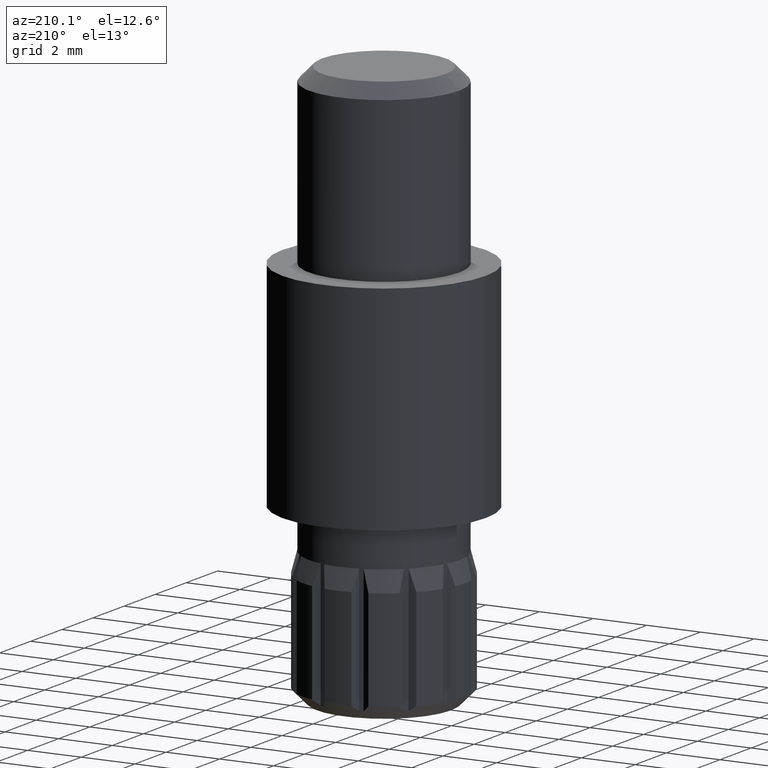
[diagram: clean part render]
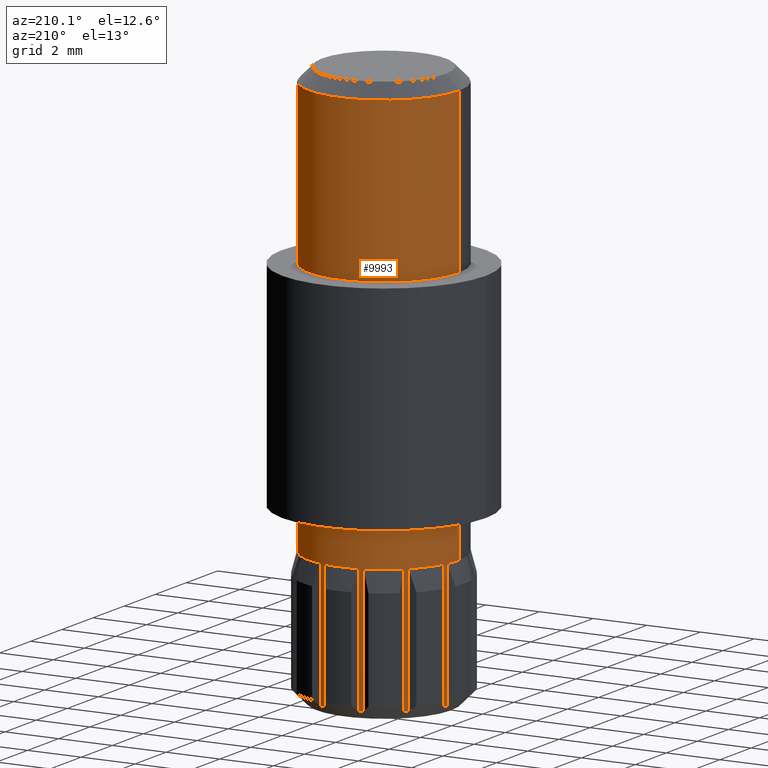
[diagram: same view with one face highlighted and labeled with its STEP entity id]
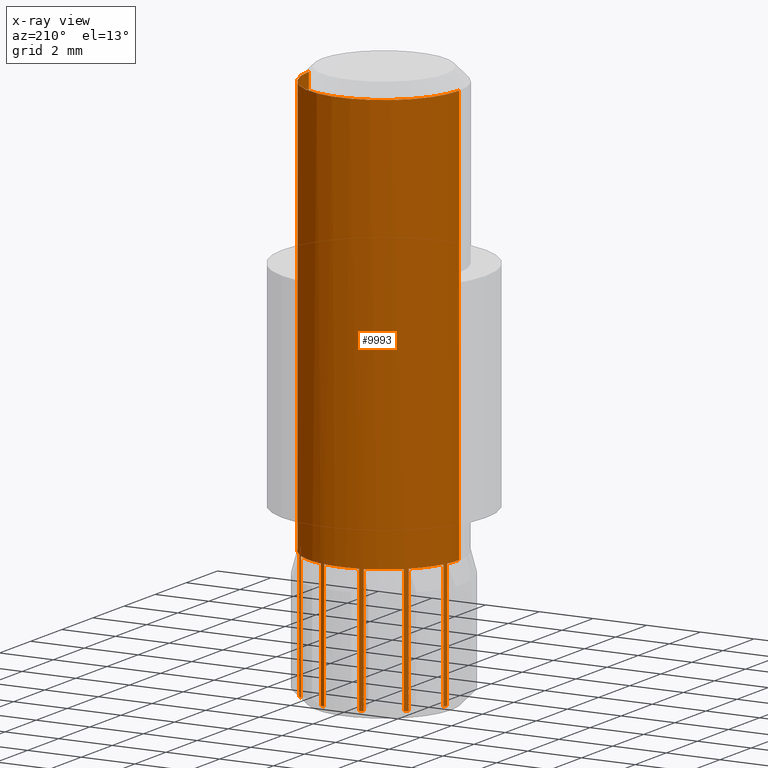
[diagram: x-ray of the same camera — body ghosted, the highlighted face saturated]
A machine part, auxiliary view. The second image highlights one B-rep face of the part: STEP entity #9993.
The next image is the same camera in x-ray: the body ghosted, the highlighted face saturated — about 0% of this face is hidden behind the body in this view.
In plain terms, the highlighted cylindrical surface (partial cylindrical patch) has radius 2.8 mm, axis along (-0, -0, -1).
Its self-contained STEP definition (entity closure, byte-faithful):
#5 = VERTEX_POINT ( 'NONE', #11321 ) ;
#7 = AXIS2_PLACEMENT_3D ( 'NONE', #841, #7958, #1878 ) ;
#28 = VERTEX_POINT ( 'NONE', #7127 ) ;
#102 = ORIENTED_EDGE ( 'NONE', *, *, #1178, .F. ) ;
#148 = VECTOR ( 'NONE', #10049, 1000.000000000000000 ) ;
#175 = VERTEX_POINT ( 'NONE', #6104 ) ;
#238 = CIRCLE ( 'NONE', #5033, 2.800000000000000300 ) ;
#292 = VECTOR ( 'NONE', #6631, 1000.000000000000000 ) ;
#320 = ORIENTED_EDGE ( 'NONE', *, *, #6941, .T. ) ;
#339 = VERTEX_POINT ( 'NONE', #10831 ) ;
#362 = ORIENTED_EDGE ( 'NONE', *, *, #8597, .T. ) ;
#525 = VECTOR ( 'NONE', #12853, 1000.000000000000000 ) ;
#628 = ORIENTED_EDGE ( 'NONE', *, *, #2498, .T. ) ;
#756 = EDGE_CURVE ( 'NONE', #5242, #5095, #8400, .T. ) ;
#760 = CARTESIAN_POINT ( 'NONE',  ( -2.723508766279258100, 0.6500000000000286700, 5.000000000000000000 ) ) ;
#841 = CARTESIAN_POINT ( 'NONE',  ( 0.0000000000000000000, 0.0000000000000000000, 0.2999999999999996000 ) ) ;
#873 = VECTOR ( 'NONE', #4812, 1000.000000000000000 ) ;
#1013 = CARTESIAN_POINT ( 'NONE',  ( 2.723508766279266500, 0.6499999999999904700, 5.000000000000000000 ) ) ;
#1031 = CARTESIAN_POINT ( 'NONE',  ( -0.6500000000000000200, 2.723508766279264300, 5.000000000000000900 ) ) ;
#1178 = EDGE_CURVE ( 'NONE', #175, #9039, #11298, .T. ) ;
#1239 = VERTEX_POINT ( 'NONE', #9187 ) ;
#1243 = CARTESIAN_POINT ( 'NONE',  ( 0.6500000000000000200, 2.723508766279264300, 5.000000000000000000 ) ) ;
#1396 = LINE ( 'NONE', #11757, #6784 ) ;
#1397 = ORIENTED_EDGE ( 'NONE', *, *, #2020, .F. ) ;
#1495 = EDGE_CURVE ( 'NONE', #175, #1583, #8391, .T. ) ;
#1496 = EDGE_CURVE ( 'NONE', #1557, #5140, #2985, .T. ) ;
#1512 = LINE ( 'NONE', #12986, #873 ) ;
#1528 = CARTESIAN_POINT ( 'NONE',  ( 0.0000000000000000000, 0.0000000000000000000, 0.2999999999999996000 ) ) ;
#1557 = VERTEX_POINT ( 'NONE', #760 ) ;
#1583 = VERTEX_POINT ( 'NONE', #12996 ) ;
#1684 = CARTESIAN_POINT ( 'NONE',  ( 0.0000000000000000000, 0.0000000000000000000, 5.000000000000000000 ) ) ;
#1689 = VERTEX_POINT ( 'NONE', #6025 ) ;
#1734 = EDGE_LOOP ( 'NONE', ( #3823, #320, #362, #6476, #11962, #1397, #3752, #8958, #2982, #102, #7638, #2042, #5899, #12287, #5963, #12450, #3305, #10972, #8893, #8575, #7944, #10658, #11323, #5150, #628, #4245, #9543, #12310 ) ) ;
#1751 = CARTESIAN_POINT ( 'NONE',  ( -2.723508766279257200, 0.6500000000000284400, 5.000000000000000000 ) ) ;
#1799 = EDGE_CURVE ( 'NONE', #3536, #5, #1396, .T. ) ;
#1806 = DIRECTION ( 'NONE',  ( 0.0000000000000000000, 0.0000000000000000000, -1.000000000000000000 ) ) ;
#1817 = CARTESIAN_POINT ( 'NONE',  ( 0.0000000000000000000, 0.0000000000000000000, 5.000000000000000000 ) ) ;
#1878 = DIRECTION ( 'NONE',  ( 1.000000000000000000, 0.0000000000000000000, 0.0000000000000000000 ) ) ;
#1927 = CARTESIAN_POINT ( 'NONE',  ( 1.924670895599519800, 2.033627779027456000, 5.000000000000000000 ) ) ;
#1991 = CARTESIAN_POINT ( 'NONE',  ( 2.033627779027463100, 1.924670895599512700, 0.2999999999999999300 ) ) ;
#2020 = EDGE_CURVE ( 'NONE', #12890, #28, #5631, .T. ) ;
#2042 = ORIENTED_EDGE ( 'NONE', *, *, #2347, .T. ) ;
#2197 = CARTESIAN_POINT ( 'NONE',  ( 1.924670895599519500, 2.033627779027455500, 0.2999999999999996000 ) ) ;
#2279 = DIRECTION ( 'NONE',  ( 0.0000000000000000000, 0.0000000000000000000, 1.000000000000000000 ) ) ;
#2313 = LINE ( 'NONE', #11986, #525 ) ;
#2333 = CYLINDRICAL_SURFACE ( 'NONE', #6137, 2.799999999999999800 ) ;
#2347 = EDGE_CURVE ( 'NONE', #1583, #12130, #3388, .T. ) ;
#2498 = EDGE_CURVE ( 'NONE', #3780, #5140, #4212, .T. ) ;
#2501 = EDGE_CURVE ( 'NONE', #11610, #10636, #9284, .T. ) ;
#2508 = CARTESIAN_POINT ( 'NONE',  ( -0.7988378706797133500, 2.683627779027469200, 5.000000000000000000 ) ) ;
#2565 = DIRECTION ( 'NONE',  ( 1.000000000000000000, 0.0000000000000000000, 0.0000000000000000000 ) ) ;
#2636 = AXIS2_PLACEMENT_3D ( 'NONE', #2649, #9752, #3653 ) ;
#2649 = CARTESIAN_POINT ( 'NONE',  ( 0.0000000000000000000, 0.0000000000000000000, 5.000000000000000000 ) ) ;
#2706 = DIRECTION ( 'NONE',  ( 3.491481338843133700E-015, 1.000000000000000000, 0.0000000000000000000 ) ) ;
#2771 = DIRECTION ( 'NONE',  ( 0.0000000000000000000, 0.0000000000000000000, 1.000000000000000000 ) ) ;
#2786 = AXIS2_PLACEMENT_3D ( 'NONE', #1817, #8914, #2823 ) ;
#2815 = CARTESIAN_POINT ( 'NONE',  ( 0.6499999999999999100, 2.723508766279263900, 0.2999999999999996000 ) ) ;
#2823 = DIRECTION ( 'NONE',  ( -0.8660254037844449200, -0.4999999999999889500, 0.0000000000000000000 ) ) ;
#2982 = ORIENTED_EDGE ( 'NONE', *, *, #12479, .T. ) ;
#2985 = LINE ( 'NONE', #1751, #292 ) ;
#3044 = CARTESIAN_POINT ( 'NONE',  ( -2.799999999999999800, 0.0000000000000000000, 20.50000000000000400 ) ) ;
#3051 = DIRECTION ( 'NONE',  ( 0.0000000000000000000, 0.0000000000000000000, -1.000000000000000000 ) ) ;
#3101 = DIRECTION ( 'NONE',  ( 0.0000000000000000000, 0.0000000000000000000, -1.000000000000000000 ) ) ;
#3126 = CARTESIAN_POINT ( 'NONE',  ( 0.0000000000000000000, 0.0000000000000000000, 0.2999999999999996000 ) ) ;
#3304 = VECTOR ( 'NONE', #7064, 1000.000000000000000 ) ;
#3305 = ORIENTED_EDGE ( 'NONE', *, *, #2501, .T. ) ;
#3388 = LINE ( 'NONE', #5872, #6438 ) ;
#3536 = VERTEX_POINT ( 'NONE', #3044 ) ;
#3545 = AXIS2_PLACEMENT_3D ( 'NONE', #9778, #3683, #10808 ) ;
#3566 = CIRCLE ( 'NONE', #7, 2.799999999999999800 ) ;
#3591 = EDGE_CURVE ( 'NONE', #11026, #7525, #6704, .T. ) ;
#3653 = DIRECTION ( 'NONE',  ( -1.047444401652940200E-014, -1.000000000000000000, 0.0000000000000000000 ) ) ;
#3683 = DIRECTION ( 'NONE',  ( 0.0000000000000000000, 0.0000000000000000000, -1.000000000000000000 ) ) ;
#3752 = ORIENTED_EDGE ( 'NONE', *, *, #9565, .T. ) ;
#3765 = CARTESIAN_POINT ( 'NONE',  ( 2.683627779027460700, 0.7988378706797413200, 5.000000000000000000 ) ) ;
#3780 = VERTEX_POINT ( 'NONE', #10131 ) ;
#3823 = ORIENTED_EDGE ( 'NONE', *, *, #11984, .T. ) ;
#3876 = LINE ( 'NONE', #1013, #5954 ) ;
#3883 = CARTESIAN_POINT ( 'NONE',  ( 2.683627779027459900, 0.7988378706797408800, 5.000000000000000000 ) ) ;
#3989 = CARTESIAN_POINT ( 'NONE',  ( 0.0000000000000000000, 0.0000000000000000000, 0.2999999999999996000 ) ) ;
#4171 = DIRECTION ( 'NONE',  ( 1.000000000000000000, 0.0000000000000000000, 0.0000000000000000000 ) ) ;
#4212 = CIRCLE ( 'NONE', #9575, 2.799999999999999800 ) ;
#4245 = ORIENTED_EDGE ( 'NONE', *, *, #1496, .F. ) ;
#4377 = CARTESIAN_POINT ( 'NONE',  ( 2.033627779027462600, 1.924670895599512400, 5.000000000000000900 ) ) ;
#4419 = DIRECTION ( 'NONE',  ( 0.0000000000000000000, 0.0000000000000000000, 1.000000000000000000 ) ) ;
#4592 = CIRCLE ( 'NONE', #7564, 2.800000000000000300 ) ;
#4602 = DIRECTION ( 'NONE',  ( 0.0000000000000000000, 0.0000000000000000000, 1.000000000000000000 ) ) ;
#4625 = CIRCLE ( 'NONE', #12679, 2.799999999999999800 ) ;
#4644 = CARTESIAN_POINT ( 'NONE',  ( -1.924670895599491100, 2.033627779027482600, 0.2999999999999996000 ) ) ;
#4669 = AXIS2_PLACEMENT_3D ( 'NONE', #10770, #4696, #11817 ) ;
#4696 = DIRECTION ( 'NONE',  ( 0.0000000000000000000, 0.0000000000000000000, 1.000000000000000000 ) ) ;
#4812 = DIRECTION ( 'NONE',  ( 0.0000000000000000000, 0.0000000000000000000, -1.000000000000000000 ) ) ;
#5024 = DIRECTION ( 'NONE',  ( 1.000000000000000000, 0.0000000000000000000, 0.0000000000000000000 ) ) ;
#5033 = AXIS2_PLACEMENT_3D ( 'NONE', #10513, #4419, #11556 ) ;
#5095 = VERTEX_POINT ( 'NONE', #2815 ) ;
#5140 = VERTEX_POINT ( 'NONE', #8023 ) ;
#5150 = ORIENTED_EDGE ( 'NONE', *, *, #8132, .T. ) ;
#5183 = EDGE_CURVE ( 'NONE', #1239, #11149, #3876, .T. ) ;
#5242 = VERTEX_POINT ( 'NONE', #9172 ) ;
#5353 = EDGE_CURVE ( 'NONE', #10949, #11524, #12787, .T. ) ;
#5498 = EDGE_CURVE ( 'NONE', #6404, #7525, #11835, .T. ) ;
#5616 = VERTEX_POINT ( 'NONE', #1031 ) ;
#5631 = LINE ( 'NONE', #3883, #8016 ) ;
#5645 = FACE_OUTER_BOUND ( 'NONE', #1734, .T. ) ;
#5655 = DIRECTION ( 'NONE',  ( -0.0000000000000000000, -0.0000000000000000000, -1.000000000000000000 ) ) ;
#5677 = DIRECTION ( 'NONE',  ( -0.0000000000000000000, -0.0000000000000000000, 1.000000000000000000 ) ) ;
#5872 = CARTESIAN_POINT ( 'NONE',  ( 0.7988378706797502100, 2.683627779027457200, 5.000000000000000000 ) ) ;
#5899 = ORIENTED_EDGE ( 'NONE', *, *, #12375, .T. ) ;
#5954 = VECTOR ( 'NONE', #7013, 1000.000000000000000 ) ;
#5963 = ORIENTED_EDGE ( 'NONE', *, *, #8539, .T. ) ;
#6025 = CARTESIAN_POINT ( 'NONE',  ( 2.799999999999999800, 3.429011037612588300E-016, 20.50000000000000400 ) ) ;
#6031 = LINE ( 'NONE', #6037, #3304 ) ;
#6037 = CARTESIAN_POINT ( 'NONE',  ( -1.924670895599491100, 2.033627779027482600, 5.000000000000000000 ) ) ;
#6038 = VECTOR ( 'NONE', #12516, 1000.000000000000000 ) ;
#6104 = CARTESIAN_POINT ( 'NONE',  ( 1.924670895599520400, 2.033627779027456400, 5.000000000000000000 ) ) ;
#6137 = AXIS2_PLACEMENT_3D ( 'NONE', #10288, #10613, #11674 ) ;
#6404 = VERTEX_POINT ( 'NONE', #12007 ) ;
#6438 = VECTOR ( 'NONE', #7820, 1000.000000000000000 ) ;
#6476 = ORIENTED_EDGE ( 'NONE', *, *, #5183, .T. ) ;
#6631 = DIRECTION ( 'NONE',  ( 0.0000000000000000000, 0.0000000000000000000, -1.000000000000000000 ) ) ;
#6704 = CIRCLE ( 'NONE', #12674, 2.799999999999999800 ) ;
#6723 = VECTOR ( 'NONE', #3101, 1000.000000000000000 ) ;
#6758 = CARTESIAN_POINT ( 'NONE',  ( -2.033627779027435500, 1.924670895599541100, 0.2999999999999996000 ) ) ;
#6761 = CARTESIAN_POINT ( 'NONE',  ( -2.683627779027448800, 0.7988378706797784100, 5.000000000000000000 ) ) ;
#6784 = VECTOR ( 'NONE', #5655, 1000.000000000000000 ) ;
#6854 = CARTESIAN_POINT ( 'NONE',  ( 2.723508766279266500, 0.6499999999999904700, 0.2999999999999997100 ) ) ;
#6867 = CARTESIAN_POINT ( 'NONE',  ( 2.033627779027463100, 1.924670895599512700, 5.000000000000000000 ) ) ;
#6908 = LINE ( 'NONE', #6867, #9295 ) ;
#6941 = EDGE_CURVE ( 'NONE', #1689, #339, #2313, .T. ) ;
#6973 = CIRCLE ( 'NONE', #10301, 2.800000000000000300 ) ;
#7013 = DIRECTION ( 'NONE',  ( 0.0000000000000000000, 0.0000000000000000000, -1.000000000000000000 ) ) ;
#7064 = DIRECTION ( 'NONE',  ( 0.0000000000000000000, 0.0000000000000000000, -1.000000000000000000 ) ) ;
#7127 = CARTESIAN_POINT ( 'NONE',  ( 2.683627779027459900, 0.7988378706797408800, 0.2999999999999996000 ) ) ;
#7202 = CARTESIAN_POINT ( 'NONE',  ( -2.033627779027435500, 1.924670895599541100, 5.000000000000000000 ) ) ;
#7402 = AXIS2_PLACEMENT_3D ( 'NONE', #3989, #11105, #5024 ) ;
#7414 = AXIS2_PLACEMENT_3D ( 'NONE', #8834, #2771, #9876 ) ;
#7525 = VERTEX_POINT ( 'NONE', #6758 ) ;
#7564 = AXIS2_PLACEMENT_3D ( 'NONE', #11791, #5677, #12809 ) ;
#7620 = CIRCLE ( 'NONE', #7402, 2.799999999999999800 ) ;
#7638 = ORIENTED_EDGE ( 'NONE', *, *, #1495, .T. ) ;
#7639 = VERTEX_POINT ( 'NONE', #1991 ) ;
#7820 = DIRECTION ( 'NONE',  ( 0.0000000000000000000, 0.0000000000000000000, -1.000000000000000000 ) ) ;
#7944 = ORIENTED_EDGE ( 'NONE', *, *, #3591, .T. ) ;
#7958 = DIRECTION ( 'NONE',  ( 0.0000000000000000000, 0.0000000000000000000, 1.000000000000000000 ) ) ;
#8016 = VECTOR ( 'NONE', #8945, 1000.000000000000000 ) ;
#8023 = CARTESIAN_POINT ( 'NONE',  ( -2.723508766279257200, 0.6500000000000284400, 0.2999999999999996000 ) ) ;
#8132 = EDGE_CURVE ( 'NONE', #8900, #3780, #12568, .T. ) ;
#8345 = CARTESIAN_POINT ( 'NONE',  ( 0.0000000000000000000, 0.0000000000000000000, 5.000000000000000000 ) ) ;
#8391 = CIRCLE ( 'NONE', #7414, 2.800000000000000700 ) ;
#8400 = LINE ( 'NONE', #1243, #6038 ) ;
#8539 = EDGE_CURVE ( 'NONE', #5242, #5616, #4592, .T. ) ;
#8572 = CIRCLE ( 'NONE', #4669, 2.799999999999999800 ) ;
#8575 = ORIENTED_EDGE ( 'NONE', *, *, #10679, .T. ) ;
#8597 = EDGE_CURVE ( 'NONE', #339, #1239, #6973, .T. ) ;
#8628 = DIRECTION ( 'NONE',  ( 0.0000000000000000000, 0.0000000000000000000, 1.000000000000000000 ) ) ;
#8784 = DIRECTION ( 'NONE',  ( 0.0000000000000000000, 0.0000000000000000000, 1.000000000000000000 ) ) ;
#8834 = CARTESIAN_POINT ( 'NONE',  ( 0.0000000000000000000, 0.0000000000000000000, 5.000000000000000000 ) ) ;
#8893 = ORIENTED_EDGE ( 'NONE', *, *, #5353, .T. ) ;
#8900 = VERTEX_POINT ( 'NONE', #9459 ) ;
#8914 = DIRECTION ( 'NONE',  ( 0.0000000000000000000, 0.0000000000000000000, 1.000000000000000000 ) ) ;
#8945 = DIRECTION ( 'NONE',  ( 0.0000000000000000000, 0.0000000000000000000, -1.000000000000000000 ) ) ;
#8958 = ORIENTED_EDGE ( 'NONE', *, *, #9330, .T. ) ;
#9039 = VERTEX_POINT ( 'NONE', #2197 ) ;
#9142 = CARTESIAN_POINT ( 'NONE',  ( -0.6499999999999999100, 2.723508766279263900, 0.2999999999999996000 ) ) ;
#9172 = CARTESIAN_POINT ( 'NONE',  ( 0.6500000000000001300, 2.723508766279265200, 5.000000000000000000 ) ) ;
#9187 = CARTESIAN_POINT ( 'NONE',  ( 2.723508766279266500, 0.6499999999999904700, 5.000000000000000900 ) ) ;
#9284 = CIRCLE ( 'NONE', #10280, 2.799999999999999800 ) ;
#9295 = VECTOR ( 'NONE', #1806, 1000.000000000000000 ) ;
#9330 = EDGE_CURVE ( 'NONE', #13126, #7639, #6908, .T. ) ;
#9355 = DIRECTION ( 'NONE',  ( -0.5000000000000101000, -0.8660254037844328200, 0.0000000000000000000 ) ) ;
#9459 = CARTESIAN_POINT ( 'NONE',  ( -2.683627779027448800, 0.7988378706797785200, 5.000000000000000900 ) ) ;
#9543 = ORIENTED_EDGE ( 'NONE', *, *, #11428, .T. ) ;
#9565 = EDGE_CURVE ( 'NONE', #12890, #13126, #238, .T. ) ;
#9575 = AXIS2_PLACEMENT_3D ( 'NONE', #1528, #8628, #2565 ) ;
#9683 = VECTOR ( 'NONE', #3051, 1000.000000000000000 ) ;
#9752 = DIRECTION ( 'NONE',  ( 0.0000000000000000000, 0.0000000000000000000, 1.000000000000000000 ) ) ;
#9778 = CARTESIAN_POINT ( 'NONE',  ( 0.0000000000000000000, 0.0000000000000000000, 20.50000000000000400 ) ) ;
#9802 = EDGE_CURVE ( 'NONE', #10949, #10636, #1512, .T. ) ;
#9822 = VECTOR ( 'NONE', #12865, 1000.000000000000000 ) ;
#9823 = EDGE_CURVE ( 'NONE', #11149, #28, #3566, .T. ) ;
#9876 = DIRECTION ( 'NONE',  ( -0.8660254037844380400, 0.5000000000000010000, 0.0000000000000000000 ) ) ;
#9993 = ADVANCED_FACE ( 'NONE', ( #5645 ), #2333, .T. ) ;
#10049 = DIRECTION ( 'NONE',  ( 0.0000000000000000000, 0.0000000000000000000, -1.000000000000000000 ) ) ;
#10131 = CARTESIAN_POINT ( 'NONE',  ( -2.683627779027448800, 0.7988378706797785200, 0.2999999999999998200 ) ) ;
#10168 = CARTESIAN_POINT ( 'NONE',  ( -0.6500000000000000200, 2.723508766279264300, 5.000000000000000000 ) ) ;
#10263 = DIRECTION ( 'NONE',  ( 0.0000000000000000000, 0.0000000000000000000, 1.000000000000000000 ) ) ;
#10280 = AXIS2_PLACEMENT_3D ( 'NONE', #10687, #4602, #11728 ) ;
#10288 = CARTESIAN_POINT ( 'NONE',  ( 0.0000000000000000000, 0.0000000000000000000, 21.00000000000000000 ) ) ;
#10301 = AXIS2_PLACEMENT_3D ( 'NONE', #1684, #8784, #2706 ) ;
#10513 = CARTESIAN_POINT ( 'NONE',  ( 0.0000000000000000000, 0.0000000000000000000, 5.000000000000000000 ) ) ;
#10613 = DIRECTION ( 'NONE',  ( -0.0000000000000000000, -0.0000000000000000000, -1.000000000000000000 ) ) ;
#10636 = VERTEX_POINT ( 'NONE', #11010 ) ;
#10658 = ORIENTED_EDGE ( 'NONE', *, *, #5498, .F. ) ;
#10679 = EDGE_CURVE ( 'NONE', #11524, #11026, #6031, .T. ) ;
#10687 = CARTESIAN_POINT ( 'NONE',  ( 0.0000000000000000000, 0.0000000000000000000, 0.2999999999999996000 ) ) ;
#10770 = CARTESIAN_POINT ( 'NONE',  ( 0.0000000000000000000, 0.0000000000000000000, 0.2999999999999996000 ) ) ;
#10807 = CIRCLE ( 'NONE', #3545, 2.799999999999999800 ) ;
#10808 = DIRECTION ( 'NONE',  ( 1.000000000000000000, 0.0000000000000000000, 0.0000000000000000000 ) ) ;
#10831 = CARTESIAN_POINT ( 'NONE',  ( 2.800000000000000300, 3.429011037612589300E-016, 5.000000000000000000 ) ) ;
#10949 = VERTEX_POINT ( 'NONE', #2508 ) ;
#10972 = ORIENTED_EDGE ( 'NONE', *, *, #9802, .F. ) ;
#11010 = CARTESIAN_POINT ( 'NONE',  ( -0.7988378706797126800, 2.683627779027468300, 0.2999999999999998200 ) ) ;
#11026 = VERTEX_POINT ( 'NONE', #4644 ) ;
#11105 = DIRECTION ( 'NONE',  ( 0.0000000000000000000, 0.0000000000000000000, 1.000000000000000000 ) ) ;
#11149 = VERTEX_POINT ( 'NONE', #6854 ) ;
#11277 = CARTESIAN_POINT ( 'NONE',  ( 0.7988378706797500900, 2.683627779027457200, 0.2999999999999997700 ) ) ;
#11298 = LINE ( 'NONE', #1927, #148 ) ;
#11321 = CARTESIAN_POINT ( 'NONE',  ( -2.800000000000000300, 0.0000000000000000000, 5.000000000000000000 ) ) ;
#11323 = ORIENTED_EDGE ( 'NONE', *, *, #11733, .T. ) ;
#11428 = EDGE_CURVE ( 'NONE', #1557, #5, #12604, .T. ) ;
#11524 = VERTEX_POINT ( 'NONE', #13117 ) ;
#11556 = DIRECTION ( 'NONE',  ( -0.4999999999999980000, 0.8660254037844399300, 0.0000000000000000000 ) ) ;
#11610 = VERTEX_POINT ( 'NONE', #9142 ) ;
#11674 = DIRECTION ( 'NONE',  ( -1.000000000000000000, 0.0000000000000000000, 0.0000000000000000000 ) ) ;
#11728 = DIRECTION ( 'NONE',  ( 1.000000000000000000, 0.0000000000000000000, 0.0000000000000000000 ) ) ;
#11733 = EDGE_CURVE ( 'NONE', #6404, #8900, #4625, .T. ) ;
#11757 = CARTESIAN_POINT ( 'NONE',  ( -2.799999999999999800, 0.0000000000000000000, 21.00000000000000000 ) ) ;
#11791 = CARTESIAN_POINT ( 'NONE',  ( 0.0000000000000000000, 0.0000000000000000000, 5.000000000000000000 ) ) ;
#11817 = DIRECTION ( 'NONE',  ( 1.000000000000000000, 0.0000000000000000000, 0.0000000000000000000 ) ) ;
#11835 = LINE ( 'NONE', #7202, #6723 ) ;
#11962 = ORIENTED_EDGE ( 'NONE', *, *, #9823, .T. ) ;
#11984 = EDGE_CURVE ( 'NONE', #3536, #1689, #10807, .T. ) ;
#11986 = CARTESIAN_POINT ( 'NONE',  ( 2.799999999999999800, 3.429011037612588300E-016, 21.00000000000000000 ) ) ;
#12007 = CARTESIAN_POINT ( 'NONE',  ( -2.033627779027436400, 1.924670895599542200, 5.000000000000000000 ) ) ;
#12130 = VERTEX_POINT ( 'NONE', #11277 ) ;
#12287 = ORIENTED_EDGE ( 'NONE', *, *, #756, .F. ) ;
#12310 = ORIENTED_EDGE ( 'NONE', *, *, #1799, .F. ) ;
#12375 = EDGE_CURVE ( 'NONE', #12130, #5095, #8572, .T. ) ;
#12435 = LINE ( 'NONE', #10168, #9683 ) ;
#12450 = ORIENTED_EDGE ( 'NONE', *, *, #12570, .T. ) ;
#12479 = EDGE_CURVE ( 'NONE', #7639, #9039, #7620, .T. ) ;
#12516 = DIRECTION ( 'NONE',  ( 0.0000000000000000000, 0.0000000000000000000, -1.000000000000000000 ) ) ;
#12568 = LINE ( 'NONE', #6761, #9822 ) ;
#12570 = EDGE_CURVE ( 'NONE', #5616, #11610, #12435, .T. ) ;
#12604 = CIRCLE ( 'NONE', #2636, 2.800000000000000300 ) ;
#12674 = AXIS2_PLACEMENT_3D ( 'NONE', #3126, #10263, #4171 ) ;
#12679 = AXIS2_PLACEMENT_3D ( 'NONE', #8345, #2279, #9355 ) ;
#12787 = CIRCLE ( 'NONE', #2786, 2.800000000000000300 ) ;
#12809 = DIRECTION ( 'NONE',  ( -1.000000000000000000, 0.0000000000000000000, 0.0000000000000000000 ) ) ;
#12853 = DIRECTION ( 'NONE',  ( -0.0000000000000000000, -0.0000000000000000000, -1.000000000000000000 ) ) ;
#12865 = DIRECTION ( 'NONE',  ( 0.0000000000000000000, 0.0000000000000000000, -1.000000000000000000 ) ) ;
#12890 = VERTEX_POINT ( 'NONE', #3765 ) ;
#12986 = CARTESIAN_POINT ( 'NONE',  ( -0.7988378706797127900, 2.683627779027468300, 5.000000000000000000 ) ) ;
#12996 = CARTESIAN_POINT ( 'NONE',  ( 0.7988378706797502100, 2.683627779027457200, 5.000000000000000900 ) ) ;
#13117 = CARTESIAN_POINT ( 'NONE',  ( -1.924670895599491100, 2.033627779027482600, 5.000000000000000900 ) ) ;
#13126 = VERTEX_POINT ( 'NONE', #4377 ) ;